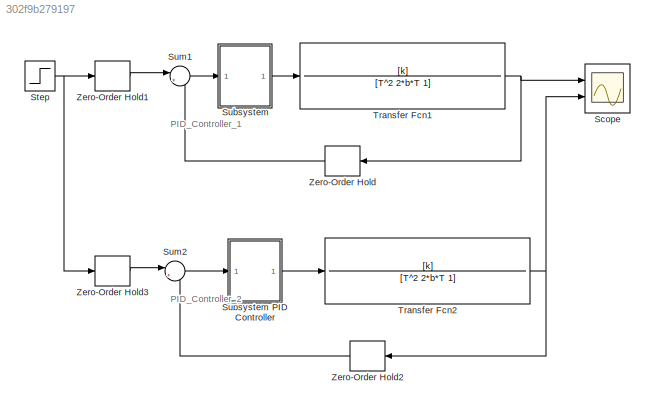
MODEL slx_302f9b279197
KIND model
CONFIG AbsTol = auto
CONFIG EnableMultiTasking = off
CONFIG FixedStep = 0.07
CONFIG MaxStep = auto
CONFIG MinStep = auto
CONFIG RelTol = 1e-3
CONFIG SampleTimeConstraint = Unconstrained
CONFIG SolverName = FixedStepAuto
CONFIG StartTime = 0.0
CONFIG StopTime = 5
BLOCK [Scope] Scope
  Floating = off
  NumInputPorts = 2
  Ports = [2]
  ScopeSpecificationString = Simulink.scopes.TimeScopeBlockCfg('CurrentConfiguration', extmgr.ConfigurationSet(extmgr.Configuration('Core','General UI',true),extmgr.Configuration('Core','Source UI',true),extmgr.Configuration('Sources','WiredSimulink',true),extmgr.Configuration('Visuals','Time Domain',true,'SerializedDisplays',{struct('MinYLimReal','-0.13326','MaxYLimReal','1.19936','YLabelReal','','MinYLimMag','0.00000','MaxY...<+1447ch>
BLOCK [Step] Step
  SampleTime = 0
  Time = 0
  VectorParams1D = off
  ZeroCross = off
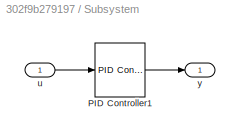
BLOCK [SubSystem] Subsystem
  Ports = [1, 1]
  RequestExecContextInheritance = off
  TreatAsAtomicUnit = on
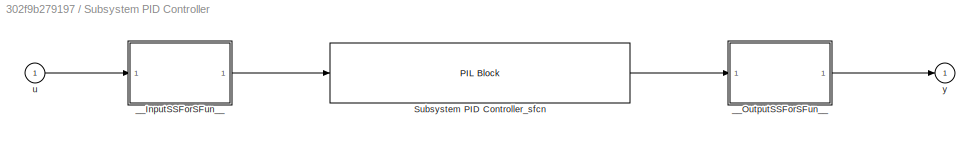
BLOCK [SubSystem] Subsystem PID Controller
  DialogController = pil_create_dialog
  LoadFcn = try\n   if ~strcmp(rtw.pil.getPILVersion, '9.11 (R2021b)_15')\n      set_param(gcb, 'DialogController', '');\n      set_param(gcb, 'DialogControllerArgs', '');\n   end\ncatch e\n      set_param(gcb, 'DialogController', '');\n      set_param(gcb, 'DialogControllerArgs', '');\nend
  Ports = [1, 1]
  RequestExecContextInheritance = off
BLOCK [Reference] Subsystem PID Controller/Subsystem PID Controller_sfcn  REF=pil_lib/PIL Block
  Ports = [1, 1]
  SourceBlock = pil_lib/PIL Block
  SourceProductBaseCode = RT
  SourceType = XILBlock
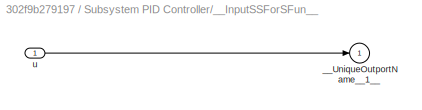
BLOCK [SubSystem] Subsystem PID Controller/__InputSSForSFun__
  PermitHierarchicalResolution = ExplicitOnly
  Ports = [1, 1]
  RequestExecContextInheritance = off
BLOCK [Outport] Subsystem PID Controller/__InputSSForSFun__/__UniqueOutportName__1__
BLOCK [Inport] Subsystem PID Controller/__InputSSForSFun__/u
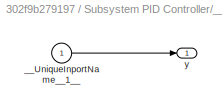
BLOCK [SubSystem] Subsystem PID Controller/__OutputSSForSFun__
  PermitHierarchicalResolution = ExplicitOnly
  Ports = [1, 1]
  RequestExecContextInheritance = off
BLOCK [Inport] Subsystem PID Controller/__OutputSSForSFun__/__UniqueInportName__1__
BLOCK [Outport] Subsystem PID Controller/__OutputSSForSFun__/y
BLOCK [Inport] Subsystem PID Controller/u
BLOCK [Outport] Subsystem PID Controller/y
BLOCK [Reference] Subsystem/PID Controller1  REF=slpidlib/PID Controller
  Ports = [1, 1]
  SourceBlock = slpidlib/PID Controller
  SourceProductBaseCode = SL
  SourceType = PID 1dof
BLOCK [Inport] Subsystem/u
BLOCK [Outport] Subsystem/y
BLOCK [Sum] Sum1
  Inputs = |+-
  Ports = [2, 1]
BLOCK [Sum] Sum2
  Inputs = |+-
  Ports = [2, 1]
BLOCK [TransferFcn] Transfer Fcn1
  Denominator = [T^2 2*b*T 1]
  Numerator = [k]
BLOCK [TransferFcn] Transfer Fcn2
  Denominator = [T^2 2*b*T 1]
  Numerator = [k]
BLOCK [ZeroOrderHold] Zero-Order Hold
  SampleTime = 0.07
BLOCK [ZeroOrderHold] Zero-Order Hold1
  SampleTime = 0.07
BLOCK [ZeroOrderHold] Zero-Order Hold2
  SampleTime = 0.07
BLOCK [ZeroOrderHold] Zero-Order Hold3
  SampleTime = 0.07
ANNOTATION (root): PID_Controller_1
ANNOTATION (root): PID_Controller_2
NET Step:1 -> Zero-Order Hold1:1, Zero-Order Hold3:1
LINE Subsystem PID Controller/Subsystem PID Controller_sfcn:1 -> Subsystem PID Controller/__OutputSSForSFun__:1
LINE Subsystem PID Controller/__InputSSForSFun__/u:1 -> Subsystem PID Controller/__InputSSForSFun__/__UniqueOutportName__1__:1
LINE Subsystem PID Controller/__InputSSForSFun__:1 -> Subsystem PID Controller/Subsystem PID Controller_sfcn:1
LINE Subsystem PID Controller/__OutputSSForSFun__/__UniqueInportName__1__:1 -> Subsystem PID Controller/__OutputSSForSFun__/y:1
LINE Subsystem PID Controller/__OutputSSForSFun__:1 -> Subsystem PID Controller/y:1
LINE Subsystem PID Controller/u:1 -> Subsystem PID Controller/__InputSSForSFun__:1
LINE Subsystem PID Controller:1 -> Transfer Fcn2:1
LINE Subsystem/PID Controller1:1 -> Subsystem/y:1
LINE Subsystem/u:1 -> Subsystem/PID Controller1:1
LINE Subsystem:1 -> Transfer Fcn1:1
LINE Sum1:1 -> Subsystem:1
LINE Sum2:1 -> Subsystem PID Controller:1
NET Transfer Fcn1:1 -> Scope:1, Zero-Order Hold:1
NET Transfer Fcn2:1 -> Scope:2, Zero-Order Hold2:1
LINE Zero-Order Hold1:1 -> Sum1:1
LINE Zero-Order Hold2:1 -> Sum2:2
LINE Zero-Order Hold3:1 -> Sum2:1
LINE Zero-Order Hold:1 -> Sum1:2
note: NET lines group one-source signal fan-out (src -> all destinations, sorted); 1:1 wires keep LINE
